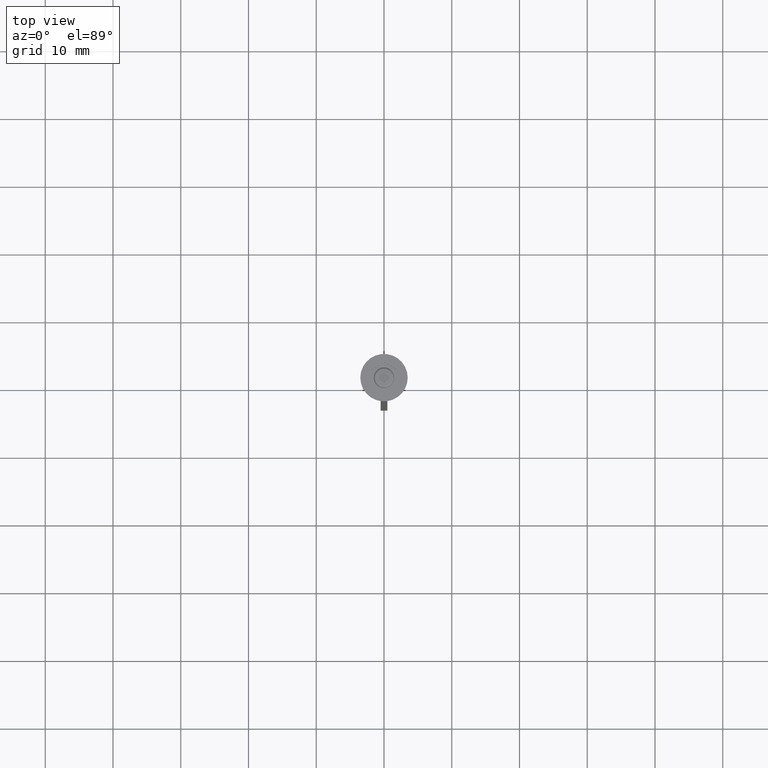
[diagram: clean part render]
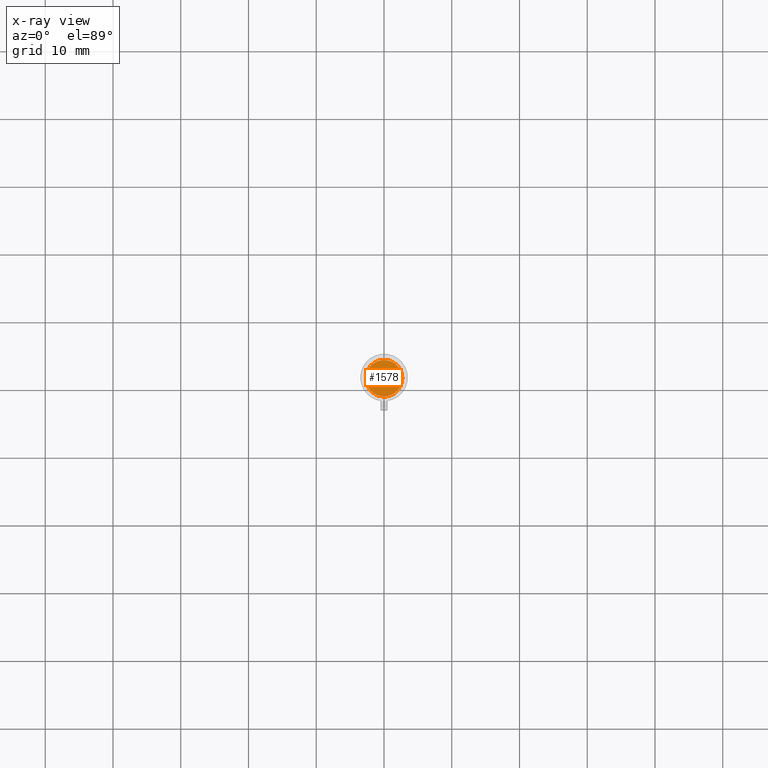
[diagram: x-ray — body ghosted, one internal face saturated and labeled with its STEP entity id]
A machine part, top view, then the same camera in x-ray: the body is ghosted and one INTERNAL B-rep face — a face not visible from any outside direction — is saturated and labeled: STEP entity #1578.
In plain terms, the highlighted planar face has unit normal (0, 0, -1).
Its self-contained STEP definition (entity closure, byte-faithful):
#18 = AXIS2_PLACEMENT_3D ( 'NONE', #2088, #1565, #323 ) ;
#208 = EDGE_CURVE ( 'NONE', #2060, #281, #1103, .T. ) ;
#272 = CARTESIAN_POINT ( 'NONE',  ( 2.700000000000002398, 3.490243377569959512E-16, -5.500000000000000000 ) ) ;
#281 = VERTEX_POINT ( 'NONE', #272 ) ;
#323 = DIRECTION ( 'NONE',  ( -1.000000000000000000, 0.000000000000000000, -0.000000000000000000 ) ) ;
#425 = EDGE_LOOP ( 'NONE', ( #788, #769 ) ) ;
#448 = CIRCLE ( 'NONE', #1756, 2.700000000000002398 ) ;
#450 = DIRECTION ( 'NONE',  ( -0.000000000000000000, -0.000000000000000000, 1.000000000000000000 ) ) ;
#769 = ORIENTED_EDGE ( 'NONE', *, *, #1713, .T. ) ;
#788 = ORIENTED_EDGE ( 'NONE', *, *, #208, .T. ) ;
#812 = CARTESIAN_POINT ( 'NONE',  ( 0.000000000000000000, 0.000000000000000000, -5.500000000000000000 ) ) ;
#1103 = CIRCLE ( 'NONE', #1486, 2.700000000000002398 ) ;
#1172 = FACE_OUTER_BOUND ( 'NONE', #425, .T. ) ;
#1331 = DIRECTION ( 'NONE',  ( -1.000000000000000000, 0.000000000000000000, 0.000000000000000000 ) ) ;
#1486 = AXIS2_PLACEMENT_3D ( 'NONE', #812, #450, #2221 ) ;
#1493 = CARTESIAN_POINT ( 'NONE',  ( 0.000000000000000000, 0.000000000000000000, -5.500000000000000000 ) ) ;
#1512 = CARTESIAN_POINT ( 'NONE',  ( -2.700000000000002398, 0.000000000000000000, -5.500000000000000000 ) ) ;
#1565 = DIRECTION ( 'NONE',  ( 0.000000000000000000, 0.000000000000000000, -1.000000000000000000 ) ) ;
#1578 = ADVANCED_FACE ( 'NONE', ( #1172 ), #2266, .F. ) ;
#1713 = EDGE_CURVE ( 'NONE', #281, #2060, #448, .T. ) ;
#1756 = AXIS2_PLACEMENT_3D ( 'NONE', #1493, #2223, #1331 ) ;
#2060 = VERTEX_POINT ( 'NONE', #1512 ) ;
#2088 = CARTESIAN_POINT ( 'NONE',  ( 0.000000000000000000, 0.000000000000000000, -5.500000000000000000 ) ) ;
#2221 = DIRECTION ( 'NONE',  ( -1.000000000000000000, 0.000000000000000000, 0.000000000000000000 ) ) ;
#2223 = DIRECTION ( 'NONE',  ( -0.000000000000000000, -0.000000000000000000, 1.000000000000000000 ) ) ;
#2266 = PLANE ( 'NONE',  #18 ) ;